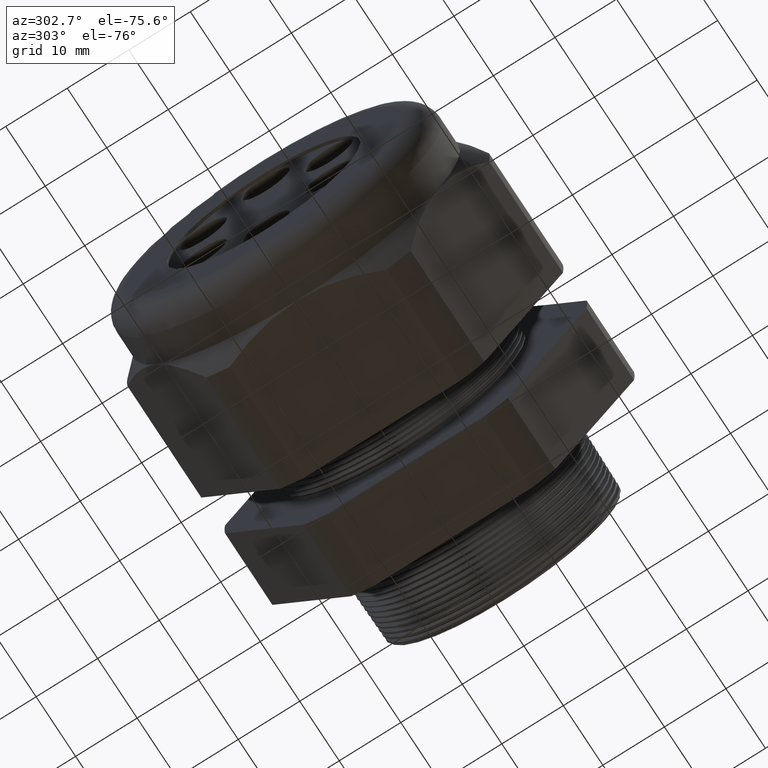
[diagram: clean part render]
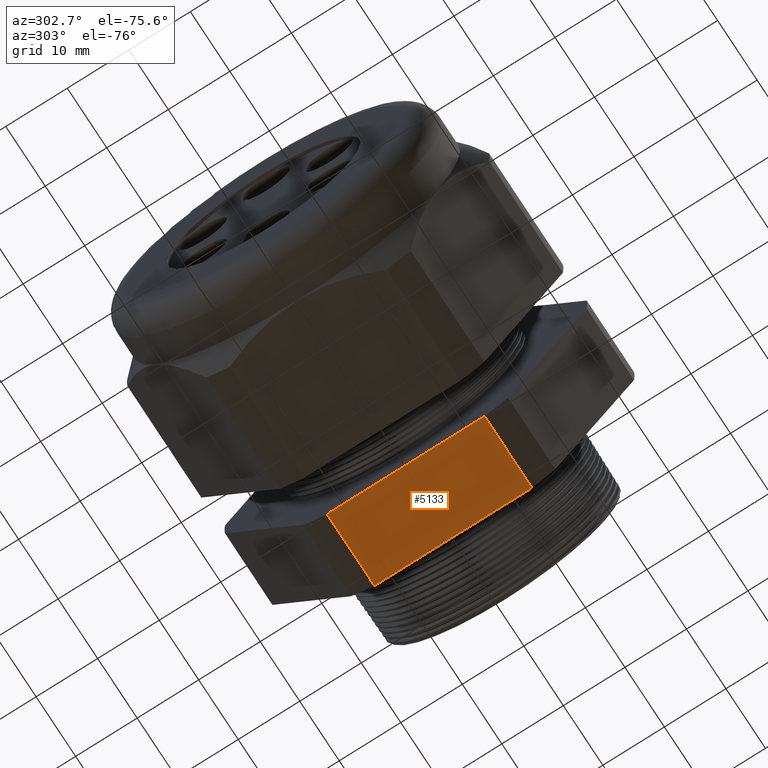
[diagram: same view with one face highlighted and labeled with its STEP entity id]
A machine part, auxiliary view. The second image highlights one B-rep face of the part: STEP entity #5133.
In plain terms, the highlighted planar face has unit normal (0, 0, -1).
Its self-contained STEP definition (entity closure, byte-faithful):
#230 = VERTEX_POINT ( 'NONE', #971 ) ;
#232 = EDGE_CURVE ( 'NONE', #230, #233, #970, .T. ) ;
#233 = VERTEX_POINT ( 'NONE', #965 ) ;
#965 = CARTESIAN_POINT ( 'NONE',  ( -0.7824399999999999100, -0.5034471198646389700, -1.044999999999999900 ) ) ;
#967 = DIRECTION ( 'NONE',  ( 0.0000000000000000000, -1.000000000000000000, 0.0000000000000000000 ) ) ;
#968 = VECTOR ( 'NONE', #967, 39.37007874015748100 ) ;
#969 = CARTESIAN_POINT ( 'NONE',  ( -0.7824399999999999100, 2.089999999999999900, -1.044999999999999900 ) ) ;
#970 = LINE ( 'NONE', #969, #968 ) ;
#971 = CARTESIAN_POINT ( 'NONE',  ( -0.7824399999999999100, 0.5034471198646389700, -1.044999999999999900 ) ) ;
#2952 = CARTESIAN_POINT ( 'NONE',  ( -0.3100000000000000000, -0.5034471198646389700, -1.044999999999999900 ) ) ;
#2960 = DIRECTION ( 'NONE',  ( 0.0000000000000000000, 1.000000000000000000, 0.0000000000000000000 ) ) ;
#2961 = VECTOR ( 'NONE', #2960, 39.37007874015748100 ) ;
#2962 = CARTESIAN_POINT ( 'NONE',  ( -0.3100000000000000000, 2.089999999999999900, -1.044999999999999900 ) ) ;
#2963 = LINE ( 'NONE', #2962, #2961 ) ;
#2964 = CARTESIAN_POINT ( 'NONE',  ( -0.3100000000000000000, 0.5034471198646389700, -1.044999999999999900 ) ) ;
#3335 = DIRECTION ( 'NONE',  ( -1.000000000000000000, 0.0000000000000000000, 0.0000000000000000000 ) ) ;
#3336 = VECTOR ( 'NONE', #3335, 39.37007874015748100 ) ;
#3337 = CARTESIAN_POINT ( 'NONE',  ( 0.2000000000000000400, -0.5034471198646389700, -1.044999999999999900 ) ) ;
#3338 = LINE ( 'NONE', #3337, #3336 ) ;
#3339 = DIRECTION ( 'NONE',  ( -1.000000000000000000, 0.0000000000000000000, 0.0000000000000000000 ) ) ;
#3340 = DIRECTION ( 'NONE',  ( 0.0000000000000000000, 0.0000000000000000000, -1.000000000000000000 ) ) ;
#3341 = CARTESIAN_POINT ( 'NONE',  ( 0.2000000000000000400, 0.5034471198646389700, -1.044999999999999900 ) ) ;
#3342 = AXIS2_PLACEMENT_3D ( 'NONE', #3341, #3340, #3339 ) ;
#3343 = PLANE ( 'NONE',  #3342 ) ;
#3344 = FACE_OUTER_BOUND ( 'NONE', #5126, .T. ) ;
#3986 = DIRECTION ( 'NONE',  ( -1.000000000000000000, 0.0000000000000000000, 0.0000000000000000000 ) ) ;
#3987 = VECTOR ( 'NONE', #3986, 39.37007874015748100 ) ;
#3988 = CARTESIAN_POINT ( 'NONE',  ( 0.2000000000000000400, 0.5034471198646389700, -1.044999999999999900 ) ) ;
#3989 = LINE ( 'NONE', #3988, #3987 ) ;
#4895 = VERTEX_POINT ( 'NONE', #2964 ) ;
#4896 = EDGE_CURVE ( 'NONE', #4903, #4895, #2963, .T. ) ;
#4903 = VERTEX_POINT ( 'NONE', #2952 ) ;
#5126 = EDGE_LOOP ( 'NONE', ( #5129, #5134, #5503, #5462 ) ) ;
#5129 = ORIENTED_EDGE ( 'NONE', *, *, #5140, .T. ) ;
#5133 = ADVANCED_FACE ( 'NONE', ( #3344 ), #3343, .T. ) ;
#5134 = ORIENTED_EDGE ( 'NONE', *, *, #232, .F. ) ;
#5140 = EDGE_CURVE ( 'NONE', #4903, #233, #3338, .T. ) ;
#5461 = EDGE_CURVE ( 'NONE', #4895, #230, #3989, .T. ) ;
#5462 = ORIENTED_EDGE ( 'NONE', *, *, #4896, .F. ) ;
#5503 = ORIENTED_EDGE ( 'NONE', *, *, #5461, .F. ) ;